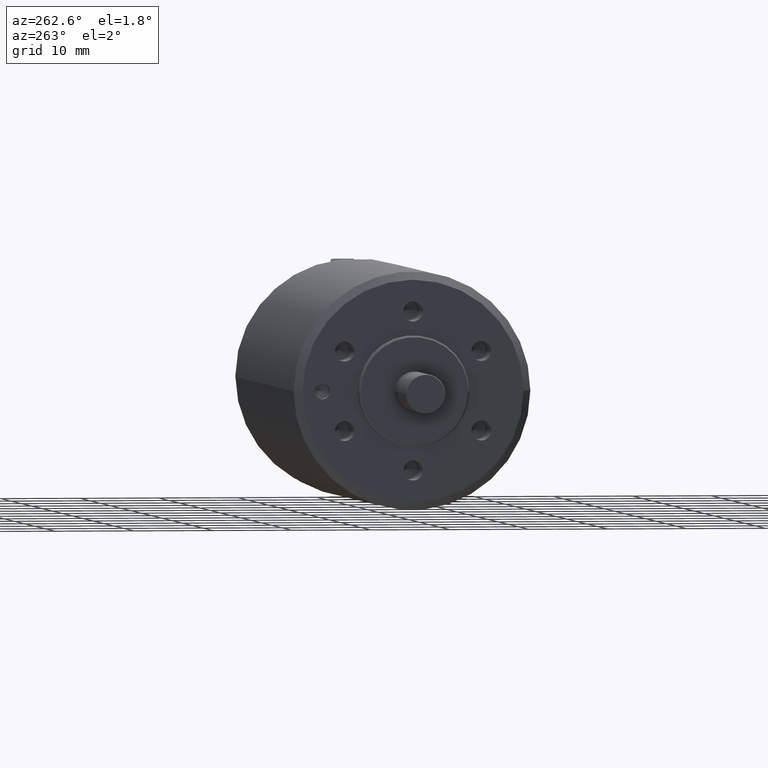
[diagram: clean part render]
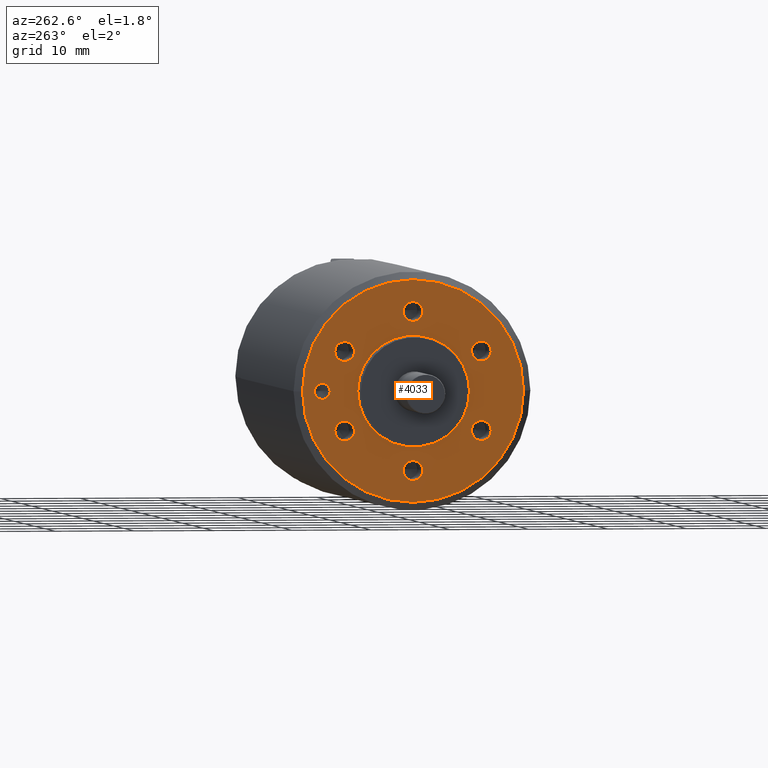
[diagram: same view with one face highlighted and labeled with its STEP entity id]
A machine part, auxiliary view. The second image highlights one B-rep face of the part: STEP entity #4033.
In plain terms, the highlighted planar face has unit normal (-1, 0, 0).
Its self-contained STEP definition (entity closure, byte-faithful):
#1147=CARTESIAN_POINT('',(-5.4E1,0.E0,0.E0));
#1148=DIRECTION('',(1.E0,0.E0,0.E0));
#1149=DIRECTION('',(0.E0,1.E0,0.E0));
#1150=AXIS2_PLACEMENT_3D('',#1147,#1148,#1149);
#1152=CARTESIAN_POINT('',(-5.4E1,0.E0,0.E0));
#1153=DIRECTION('',(-1.E0,0.E0,0.E0));
#1154=DIRECTION('',(0.E0,1.E0,0.E0));
#1155=AXIS2_PLACEMENT_3D('',#1152,#1153,#1154);
#1157=CARTESIAN_POINT('',(-5.4E1,0.E0,0.E0));
#1158=DIRECTION('',(1.E0,0.E0,0.E0));
#1159=DIRECTION('',(0.E0,-1.E0,0.E0));
#1160=AXIS2_PLACEMENT_3D('',#1157,#1158,#1159);
#1162=CARTESIAN_POINT('',(-5.4E1,0.E0,0.E0));
#1163=DIRECTION('',(1.E0,0.E0,0.E0));
#1164=DIRECTION('',(0.E0,1.E0,0.E0));
#1165=AXIS2_PLACEMENT_3D('',#1162,#1163,#1164);
#1167=CARTESIAN_POINT('',(-5.4E1,0.E0,1.E1));
#1168=DIRECTION('',(-1.E0,0.E0,0.E0));
#1169=DIRECTION('',(0.E0,1.E0,0.E0));
#1170=AXIS2_PLACEMENT_3D('',#1167,#1168,#1169);
#1172=CARTESIAN_POINT('',(-5.4E1,0.E0,1.E1));
#1173=DIRECTION('',(-1.E0,0.E0,0.E0));
#1174=DIRECTION('',(0.E0,-1.E0,0.E0));
#1175=AXIS2_PLACEMENT_3D('',#1172,#1173,#1174);
#1177=CARTESIAN_POINT('',(-5.4E1,8.660254037844E0,5.E0));
#1178=DIRECTION('',(-1.E0,0.E0,0.E0));
#1179=DIRECTION('',(0.E0,5.E-1,-8.660254037844E-1));
#1180=AXIS2_PLACEMENT_3D('',#1177,#1178,#1179);
#1182=CARTESIAN_POINT('',(-5.4E1,8.660254037844E0,5.E0));
#1183=DIRECTION('',(-1.E0,0.E0,0.E0));
#1184=DIRECTION('',(0.E0,-5.E-1,8.660254037844E-1));
#1185=AXIS2_PLACEMENT_3D('',#1182,#1183,#1184);
#1187=CARTESIAN_POINT('',(-5.4E1,8.660254037844E0,-5.E0));
#1188=DIRECTION('',(-1.E0,0.E0,0.E0));
#1189=DIRECTION('',(0.E0,-5.E-1,-8.660254037844E-1));
#1190=AXIS2_PLACEMENT_3D('',#1187,#1188,#1189);
#1192=CARTESIAN_POINT('',(-5.4E1,8.660254037844E0,-5.E0));
#1193=DIRECTION('',(-1.E0,0.E0,0.E0));
#1194=DIRECTION('',(0.E0,5.E-1,8.660254037844E-1));
#1195=AXIS2_PLACEMENT_3D('',#1192,#1193,#1194);
#1197=CARTESIAN_POINT('',(-5.4E1,0.E0,-1.E1));
#1198=DIRECTION('',(-1.E0,0.E0,0.E0));
#1199=DIRECTION('',(0.E0,-1.E0,0.E0));
#1200=AXIS2_PLACEMENT_3D('',#1197,#1198,#1199);
#1202=CARTESIAN_POINT('',(-5.4E1,0.E0,-1.E1));
#1203=DIRECTION('',(-1.E0,0.E0,0.E0));
#1204=DIRECTION('',(0.E0,1.E0,0.E0));
#1205=AXIS2_PLACEMENT_3D('',#1202,#1203,#1204);
#1207=CARTESIAN_POINT('',(-5.4E1,-8.660254037844E0,-5.E0));
#1208=DIRECTION('',(-1.E0,0.E0,0.E0));
#1209=DIRECTION('',(0.E0,-5.E-1,8.660254037844E-1));
#1210=AXIS2_PLACEMENT_3D('',#1207,#1208,#1209);
#1212=CARTESIAN_POINT('',(-5.4E1,-8.660254037844E0,-5.E0));
#1213=DIRECTION('',(-1.E0,0.E0,0.E0));
#1214=DIRECTION('',(0.E0,5.E-1,-8.660254037844E-1));
#1215=AXIS2_PLACEMENT_3D('',#1212,#1213,#1214);
#1217=CARTESIAN_POINT('',(-5.4E1,-8.660254037844E0,5.E0));
#1218=DIRECTION('',(-1.E0,0.E0,0.E0));
#1219=DIRECTION('',(0.E0,5.E-1,8.660254037844E-1));
#1220=AXIS2_PLACEMENT_3D('',#1217,#1218,#1219);
#1222=CARTESIAN_POINT('',(-5.4E1,-8.660254037844E0,5.E0));
#1223=DIRECTION('',(-1.E0,0.E0,0.E0));
#1224=DIRECTION('',(0.E0,-5.E-1,-8.660254037844E-1));
#1225=AXIS2_PLACEMENT_3D('',#1222,#1223,#1224);
#1227=CARTESIAN_POINT('',(-5.4E1,1.15E1,0.E0));
#1228=DIRECTION('',(-1.E0,0.E0,0.E0));
#1229=DIRECTION('',(0.E0,1.E0,0.E0));
#1230=AXIS2_PLACEMENT_3D('',#1227,#1228,#1229);
#1232=CARTESIAN_POINT('',(-5.4E1,1.15E1,0.E0));
#1233=DIRECTION('',(-1.E0,0.E0,0.E0));
#1234=DIRECTION('',(0.E0,-1.E0,0.E0));
#1235=AXIS2_PLACEMENT_3D('',#1232,#1233,#1234);
#2322=CARTESIAN_POINT('',(-5.4E1,1.4E1,0.E0));
#2323=VERTEX_POINT('',#2322);
#2336=CARTESIAN_POINT('',(-5.4E1,-1.4E1,0.E0));
#2337=VERTEX_POINT('',#2336);
#2494=CARTESIAN_POINT('',(-5.4E1,-7.E0,0.E0));
#2495=CARTESIAN_POINT('',(-5.4E1,7.E0,0.E0));
#2496=VERTEX_POINT('',#2494);
#2497=VERTEX_POINT('',#2495);
#2520=CARTESIAN_POINT('',(-5.4E1,1.25E0,1.E1));
#2521=CARTESIAN_POINT('',(-5.4E1,-1.25E0,1.E1));
#2522=VERTEX_POINT('',#2520);
#2523=VERTEX_POINT('',#2521);
#2530=CARTESIAN_POINT('',(-5.4E1,9.285254037844E0,3.917468245269E0));
#2531=CARTESIAN_POINT('',(-5.4E1,8.035254037844E0,6.082531754731E0));
#2532=VERTEX_POINT('',#2530);
#2533=VERTEX_POINT('',#2531);
#2540=CARTESIAN_POINT('',(-5.4E1,8.035254037844E0,-6.082531754731E0));
#2541=CARTESIAN_POINT('',(-5.4E1,9.285254037844E0,-3.917468245269E0));
#2542=VERTEX_POINT('',#2540);
#2543=VERTEX_POINT('',#2541);
#2550=CARTESIAN_POINT('',(-5.4E1,-1.25E0,-1.E1));
#2551=CARTESIAN_POINT('',(-5.4E1,1.25E0,-1.E1));
#2552=VERTEX_POINT('',#2550);
#2553=VERTEX_POINT('',#2551);
#2560=CARTESIAN_POINT('',(-5.4E1,-9.285254037844E0,-3.917468245269E0));
#2561=CARTESIAN_POINT('',(-5.4E1,-8.035254037844E0,-6.082531754731E0));
#2562=VERTEX_POINT('',#2560);
#2563=VERTEX_POINT('',#2561);
#2570=CARTESIAN_POINT('',(-5.4E1,-8.035254037844E0,6.082531754731E0));
#2571=CARTESIAN_POINT('',(-5.4E1,-9.285254037844E0,3.917468245269E0));
#2572=VERTEX_POINT('',#2570);
#2573=VERTEX_POINT('',#2571);
#2628=CARTESIAN_POINT('',(-5.4E1,1.25E1,0.E0));
#2629=CARTESIAN_POINT('',(-5.4E1,1.05E1,0.E0));
#2630=VERTEX_POINT('',#2628);
#2631=VERTEX_POINT('',#2629);
#3976=CARTESIAN_POINT('',(-5.4E1,0.E0,0.E0));
#3977=DIRECTION('',(-1.E0,0.E0,0.E0));
#3978=DIRECTION('',(0.E0,1.E0,0.E0));
#3979=AXIS2_PLACEMENT_3D('',#3976,#3977,#3978);
#3980=PLANE('',#3979);
#3981=ORIENTED_EDGE('',*,*,#3971,.T.);
#3982=ORIENTED_EDGE('',*,*,#3955,.F.);
#3983=EDGE_LOOP('',(#3981,#3982));
#3984=FACE_OUTER_BOUND('',#3983,.F.);
#3986=ORIENTED_EDGE('',*,*,#3985,.F.);
#3988=ORIENTED_EDGE('',*,*,#3987,.F.);
#3989=EDGE_LOOP('',(#3986,#3988));
#3990=FACE_BOUND('',#3989,.F.);
#3992=ORIENTED_EDGE('',*,*,#3991,.T.);
#3994=ORIENTED_EDGE('',*,*,#3993,.T.);
#3995=EDGE_LOOP('',(#3992,#3994));
#3996=FACE_BOUND('',#3995,.F.);
#3998=ORIENTED_EDGE('',*,*,#3997,.T.);
#4000=ORIENTED_EDGE('',*,*,#3999,.T.);
#4001=EDGE_LOOP('',(#3998,#4000));
#4002=FACE_BOUND('',#4001,.F.);
#4004=ORIENTED_EDGE('',*,*,#4003,.T.);
#4006=ORIENTED_EDGE('',*,*,#4005,.T.);
#4007=EDGE_LOOP('',(#4004,#4006));
#4008=FACE_BOUND('',#4007,.F.);
#4010=ORIENTED_EDGE('',*,*,#4009,.T.);
#4012=ORIENTED_EDGE('',*,*,#4011,.T.);
#4013=EDGE_LOOP('',(#4010,#4012));
#4014=FACE_BOUND('',#4013,.F.);
#4016=ORIENTED_EDGE('',*,*,#4015,.T.);
#4018=ORIENTED_EDGE('',*,*,#4017,.T.);
#4019=EDGE_LOOP('',(#4016,#4018));
#4020=FACE_BOUND('',#4019,.F.);
#4022=ORIENTED_EDGE('',*,*,#4021,.T.);
#4024=ORIENTED_EDGE('',*,*,#4023,.T.);
#4025=EDGE_LOOP('',(#4022,#4024));
#4026=FACE_BOUND('',#4025,.F.);
#4028=ORIENTED_EDGE('',*,*,#4027,.T.);
#4030=ORIENTED_EDGE('',*,*,#4029,.T.);
#4031=EDGE_LOOP('',(#4028,#4030));
#4032=FACE_BOUND('',#4031,.F.);
#4033=ADVANCED_FACE('',(#3984,#3990,#3996,#4002,#4008,#4014,#4020,#4026,#4032),
#3980,.T.);
#1151=CIRCLE('',#1150,1.4E1);
#1156=CIRCLE('',#1155,1.4E1);
#1161=CIRCLE('',#1160,7.E0);
#1166=CIRCLE('',#1165,7.E0);
#1171=CIRCLE('',#1170,1.25E0);
#1176=CIRCLE('',#1175,1.25E0);
#1181=CIRCLE('',#1180,1.25E0);
#1186=CIRCLE('',#1185,1.25E0);
#1191=CIRCLE('',#1190,1.25E0);
#1196=CIRCLE('',#1195,1.25E0);
#1201=CIRCLE('',#1200,1.25E0);
#1206=CIRCLE('',#1205,1.25E0);
#1211=CIRCLE('',#1210,1.25E0);
#1216=CIRCLE('',#1215,1.25E0);
#1221=CIRCLE('',#1220,1.25E0);
#1226=CIRCLE('',#1225,1.25E0);
#1231=CIRCLE('',#1230,1.E0);
#1236=CIRCLE('',#1235,1.E0);
#3955=EDGE_CURVE('',#2323,#2337,#1156,.T.);
#3971=EDGE_CURVE('',#2323,#2337,#1151,.T.);
#3985=EDGE_CURVE('',#2496,#2497,#1161,.T.);
#3987=EDGE_CURVE('',#2497,#2496,#1166,.T.);
#3991=EDGE_CURVE('',#2522,#2523,#1171,.T.);
#3993=EDGE_CURVE('',#2523,#2522,#1176,.T.);
#3997=EDGE_CURVE('',#2532,#2533,#1181,.T.);
#3999=EDGE_CURVE('',#2533,#2532,#1186,.T.);
#4003=EDGE_CURVE('',#2542,#2543,#1191,.T.);
#4005=EDGE_CURVE('',#2543,#2542,#1196,.T.);
#4009=EDGE_CURVE('',#2552,#2553,#1201,.T.);
#4011=EDGE_CURVE('',#2553,#2552,#1206,.T.);
#4015=EDGE_CURVE('',#2562,#2563,#1211,.T.);
#4017=EDGE_CURVE('',#2563,#2562,#1216,.T.);
#4021=EDGE_CURVE('',#2572,#2573,#1221,.T.);
#4023=EDGE_CURVE('',#2573,#2572,#1226,.T.);
#4027=EDGE_CURVE('',#2630,#2631,#1231,.T.);
#4029=EDGE_CURVE('',#2631,#2630,#1236,.T.);